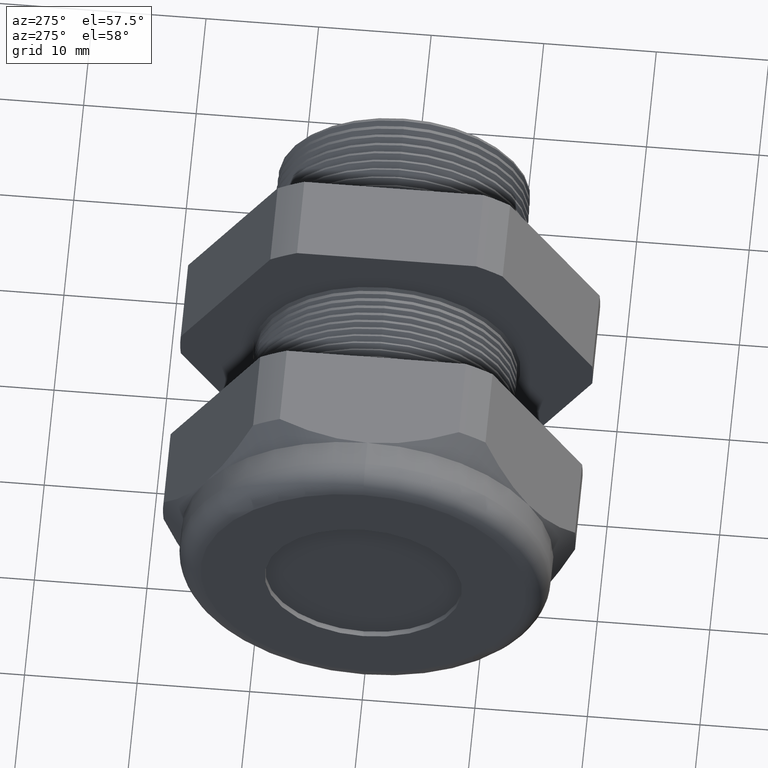
[diagram: clean part render]
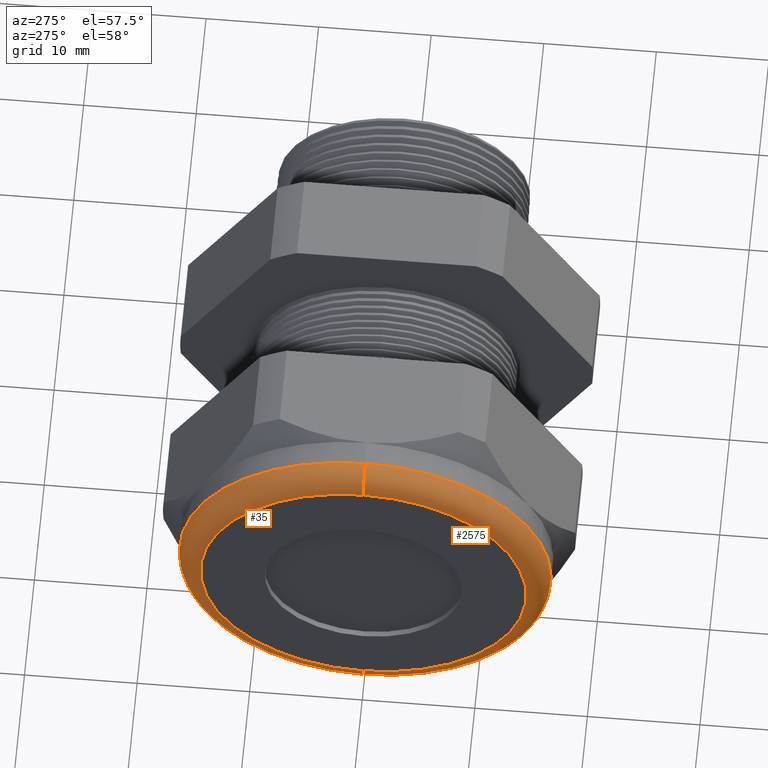
[diagram: same view with one multi-face feature highlighted, each face labeled with its STEP entity id]
A machine part, auxiliary view. The highlighted faces form ONE feature: a constant-radius fillet chain: 2 tangent blend faces with common blend radius 2.032 mm. The faces share edges in the B-rep.
Their STEP definitions:
[1] entity #35 (Torus):
#35 = ADVANCED_FACE ( 'NONE', ( #997 ), #995, .T. ) ;
#55 = VERTEX_POINT ( 'NONE', #2677 ) ;
#58 = VERTEX_POINT ( 'NONE', #2671 ) ;
#67 = EDGE_CURVE ( 'NONE', #55, #58, #2720, .T. ) ;
#887 = EDGE_CURVE ( 'NONE', #58, #5029, #4396, .T. ) ;
#992 = DIRECTION ( 'NONE',  ( 0.0000000000000000000, 0.0000000000000000000, 1.000000000000000000 ) ) ;
#993 = DIRECTION ( 'NONE',  ( -1.000000000000000000, 0.0000000000000000000, 0.0000000000000000000 ) ) ;
#994 = AXIS2_PLACEMENT_3D ( 'NONE', #996, #993, #992 ) ;
#995 = TOROIDAL_SURFACE ( 'NONE', #994, 0.5699999999999999500, 0.08000000000000000200 ) ;
#996 = CARTESIAN_POINT ( 'NONE',  ( -1.449999999999999700, 0.0000000000000000000, 0.0000000000000000000 ) ) ;
#997 = FACE_OUTER_BOUND ( 'NONE', #5324, .T. ) ;
#1348 = DIRECTION ( 'NONE',  ( 0.0000000000000000000, 0.0000000000000000000, 1.000000000000000000 ) ) ;
#1349 = DIRECTION ( 'NONE',  ( -1.000000000000000000, 0.0000000000000000000, 0.0000000000000000000 ) ) ;
#1350 = CARTESIAN_POINT ( 'NONE',  ( -1.529999999999999800, 0.0000000000000000000, 0.0000000000000000000 ) ) ;
#1351 = AXIS2_PLACEMENT_3D ( 'NONE', #1350, #1349, #1348 ) ;
#1352 = CIRCLE ( 'NONE', #1351, 0.5699999999999999500 ) ;
#1371 = CARTESIAN_POINT ( 'NONE',  ( -1.529999999999999800, 0.0000000000000000000, 0.5699999999999999500 ) ) ;
#1381 = CIRCLE ( 'NONE', #1439, 0.07999999999999996000 ) ;
#1431 = CARTESIAN_POINT ( 'NONE',  ( -1.529999999999999800, 7.470345474798854000E-017, -0.5699999999999999500 ) ) ;
#1436 = DIRECTION ( 'NONE',  ( 0.0000000000000000000, -1.224646799147353900E-016, 1.000000000000000000 ) ) ;
#1437 = DIRECTION ( 'NONE',  ( 0.0000000000000000000, 1.000000000000000000, 1.224646799147353200E-016 ) ) ;
#1438 = CARTESIAN_POINT ( 'NONE',  ( -1.449999999999999700, 6.980486755139912600E-017, -0.5699999999999999500 ) ) ;
#1439 = AXIS2_PLACEMENT_3D ( 'NONE', #1438, #1437, #1436 ) ;
#2671 = CARTESIAN_POINT ( 'NONE',  ( -1.449999999999999700, 7.960204194457794200E-017, 0.6499999999999999100 ) ) ;
#2677 = CARTESIAN_POINT ( 'NONE',  ( -1.449999999999999700, 0.0000000000000000000, -0.6499999999999999100 ) ) ;
#2716 = DIRECTION ( 'NONE',  ( 0.0000000000000000000, 0.0000000000000000000, 1.000000000000000000 ) ) ;
#2717 = DIRECTION ( 'NONE',  ( 1.000000000000000000, 0.0000000000000000000, 0.0000000000000000000 ) ) ;
#2718 = CARTESIAN_POINT ( 'NONE',  ( -1.449999999999999700, 0.0000000000000000000, 0.0000000000000000000 ) ) ;
#2719 = AXIS2_PLACEMENT_3D ( 'NONE', #2718, #2717, #2716 ) ;
#2720 = CIRCLE ( 'NONE', #2719, 0.6499999999999999100 ) ;
#4392 = DIRECTION ( 'NONE',  ( 0.0000000000000000000, 0.0000000000000000000, -1.000000000000000000 ) ) ;
#4393 = DIRECTION ( 'NONE',  ( 0.0000000000000000000, -1.000000000000000000, 0.0000000000000000000 ) ) ;
#4394 = CARTESIAN_POINT ( 'NONE',  ( -1.449999999999999700, 0.0000000000000000000, 0.5699999999999999500 ) ) ;
#4395 = AXIS2_PLACEMENT_3D ( 'NONE', #4394, #4393, #4392 ) ;
#4396 = CIRCLE ( 'NONE', #4395, 0.07999999999999996000 ) ;
#4735 = ORIENTED_EDGE ( 'NONE', *, *, #5042, .F. ) ;
#5023 = ORIENTED_EDGE ( 'NONE', *, *, #5054, .T. ) ;
#5029 = VERTEX_POINT ( 'NONE', #1371 ) ;
#5042 = EDGE_CURVE ( 'NONE', #5029, #5056, #1352, .T. ) ;
#5054 = EDGE_CURVE ( 'NONE', #55, #5056, #1381, .T. ) ;
#5056 = VERTEX_POINT ( 'NONE', #1431 ) ;
#5059 = ORIENTED_EDGE ( 'NONE', *, *, #887, .F. ) ;
#5316 = ORIENTED_EDGE ( 'NONE', *, *, #67, .F. ) ;
#5324 = EDGE_LOOP ( 'NONE', ( #5316, #5023, #4735, #5059 ) ) ;
[2] entity #2575 (Torus):
#55 = VERTEX_POINT ( 'NONE', #2677 ) ;
#58 = VERTEX_POINT ( 'NONE', #2671 ) ;
#236 = EDGE_CURVE ( 'NONE', #58, #55, #3025, .T. ) ;
#302 = EDGE_CURVE ( 'NONE', #5056, #5029, #3154, .T. ) ;
#887 = EDGE_CURVE ( 'NONE', #58, #5029, #4396, .T. ) ;
#1038 = DIRECTION ( 'NONE',  ( 0.0000000000000000000, 0.0000000000000000000, 1.000000000000000000 ) ) ;
#1039 = DIRECTION ( 'NONE',  ( -1.000000000000000000, 0.0000000000000000000, 0.0000000000000000000 ) ) ;
#1040 = CARTESIAN_POINT ( 'NONE',  ( -1.449999999999999700, 0.0000000000000000000, 0.0000000000000000000 ) ) ;
#1041 = AXIS2_PLACEMENT_3D ( 'NONE', #1040, #1039, #1038 ) ;
#1042 = TOROIDAL_SURFACE ( 'NONE', #1041, 0.5699999999999999500, 0.08000000000000000200 ) ;
#1043 = FACE_OUTER_BOUND ( 'NONE', #2583, .T. ) ;
#1371 = CARTESIAN_POINT ( 'NONE',  ( -1.529999999999999800, 0.0000000000000000000, 0.5699999999999999500 ) ) ;
#1381 = CIRCLE ( 'NONE', #1439, 0.07999999999999996000 ) ;
#1431 = CARTESIAN_POINT ( 'NONE',  ( -1.529999999999999800, 7.470345474798854000E-017, -0.5699999999999999500 ) ) ;
#1436 = DIRECTION ( 'NONE',  ( 0.0000000000000000000, -1.224646799147353900E-016, 1.000000000000000000 ) ) ;
#1437 = DIRECTION ( 'NONE',  ( 0.0000000000000000000, 1.000000000000000000, 1.224646799147353200E-016 ) ) ;
#1438 = CARTESIAN_POINT ( 'NONE',  ( -1.449999999999999700, 6.980486755139912600E-017, -0.5699999999999999500 ) ) ;
#1439 = AXIS2_PLACEMENT_3D ( 'NONE', #1438, #1437, #1436 ) ;
#2575 = ADVANCED_FACE ( 'NONE', ( #1043 ), #1042, .T. ) ;
#2583 = EDGE_LOOP ( 'NONE', ( #5361, #5359, #5360, #5363 ) ) ;
#2671 = CARTESIAN_POINT ( 'NONE',  ( -1.449999999999999700, 7.960204194457794200E-017, 0.6499999999999999100 ) ) ;
#2677 = CARTESIAN_POINT ( 'NONE',  ( -1.449999999999999700, 0.0000000000000000000, -0.6499999999999999100 ) ) ;
#3021 = DIRECTION ( 'NONE',  ( 0.0000000000000000000, 0.0000000000000000000, 1.000000000000000000 ) ) ;
#3022 = DIRECTION ( 'NONE',  ( 1.000000000000000000, 0.0000000000000000000, 0.0000000000000000000 ) ) ;
#3023 = CARTESIAN_POINT ( 'NONE',  ( -1.449999999999999700, 0.0000000000000000000, 0.0000000000000000000 ) ) ;
#3024 = AXIS2_PLACEMENT_3D ( 'NONE', #3023, #3022, #3021 ) ;
#3025 = CIRCLE ( 'NONE', #3024, 0.6499999999999999100 ) ;
#3150 = DIRECTION ( 'NONE',  ( 0.0000000000000000000, 0.0000000000000000000, 1.000000000000000000 ) ) ;
#3151 = DIRECTION ( 'NONE',  ( -1.000000000000000000, 0.0000000000000000000, 0.0000000000000000000 ) ) ;
#3152 = CARTESIAN_POINT ( 'NONE',  ( -1.529999999999999800, 0.0000000000000000000, 0.0000000000000000000 ) ) ;
#3153 = AXIS2_PLACEMENT_3D ( 'NONE', #3152, #3151, #3150 ) ;
#3154 = CIRCLE ( 'NONE', #3153, 0.5699999999999999500 ) ;
#4392 = DIRECTION ( 'NONE',  ( 0.0000000000000000000, 0.0000000000000000000, -1.000000000000000000 ) ) ;
#4393 = DIRECTION ( 'NONE',  ( 0.0000000000000000000, -1.000000000000000000, 0.0000000000000000000 ) ) ;
#4394 = CARTESIAN_POINT ( 'NONE',  ( -1.449999999999999700, 0.0000000000000000000, 0.5699999999999999500 ) ) ;
#4395 = AXIS2_PLACEMENT_3D ( 'NONE', #4394, #4393, #4392 ) ;
#4396 = CIRCLE ( 'NONE', #4395, 0.07999999999999996000 ) ;
#5029 = VERTEX_POINT ( 'NONE', #1371 ) ;
#5054 = EDGE_CURVE ( 'NONE', #55, #5056, #1381, .T. ) ;
#5056 = VERTEX_POINT ( 'NONE', #1431 ) ;
#5359 = ORIENTED_EDGE ( 'NONE', *, *, #236, .F. ) ;
#5360 = ORIENTED_EDGE ( 'NONE', *, *, #887, .T. ) ;
#5361 = ORIENTED_EDGE ( 'NONE', *, *, #5054, .F. ) ;
#5363 = ORIENTED_EDGE ( 'NONE', *, *, #302, .F. ) ;